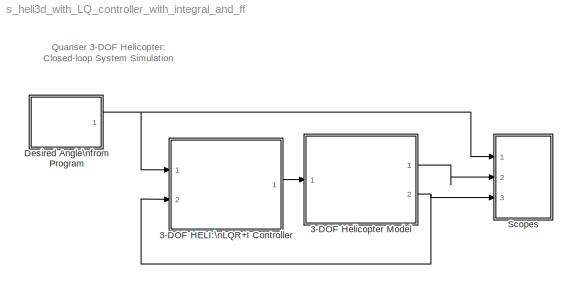
MODEL s_heli3d_with_LQ_controller_with_integral_and_ff
KIND model
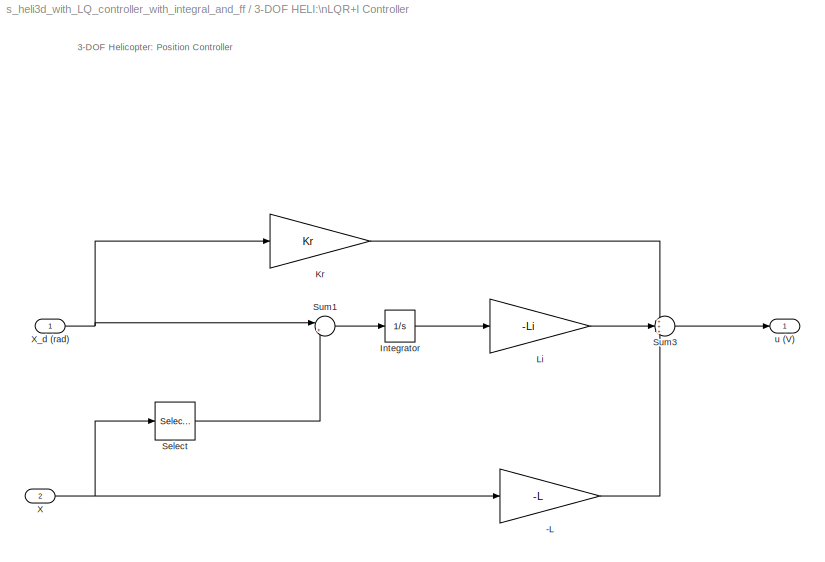
BLOCK [SubSystem] 3-DOF HELI:\nLQR+I Controller
  AncestorBlock = heli_2d_lib/2DOF HELI:\nFF+LQR+I Controller
  FunctionWithSeparateData = off
  MaskHideContents = off
  MinAlgLoopOccurrences = off
  Opaque = off
  Ports = [2, 1]
  PropExecContextOutsideSubsystem = off
  RTWSystemCode = Auto
  RequestExecContextInheritance = off
  SID = 1
BLOCK [Gain] 3-DOF HELI:\nLQR+I Controller/-L
  Gain = -L
  Multiplication = Matrix(K*u)
  OutDataTypeStr = Inherit: Inherit via internal rule
  ParamDataTypeStr = Inherit: Inherit via internal rule
  SID = 1:34
  SaturateOnIntegerOverflow = off
BLOCK [Integrator] 3-DOF HELI:\nLQR+I Controller/Integrator
  LimitOutput = on
  LowerSaturationLimit = -SAT_INT_ERR_TRAVEL
  Ports = [1, 1]
  SID = 1:41
  UpperSaturationLimit = SAT_INT_ERR_TRAVEL
BLOCK [Gain] 3-DOF HELI:\nLQR+I Controller/Kr
  Gain = Kr
  Multiplication = Matrix(K*u)
  OutDataTypeStr = Inherit: Inherit via internal rule
  ParamDataTypeStr = Inherit: Inherit via internal rule
  SID = 1:46
  SaturateOnIntegerOverflow = off
BLOCK [Gain] 3-DOF HELI:\nLQR+I Controller/Li
  Gain = -Li
  Multiplication = Matrix(K*u)
  OutDataTypeStr = Inherit: Inherit via internal rule
  ParamDataTypeStr = Inherit: Inherit via internal rule
  SID = 1:38
  SaturateOnIntegerOverflow = off
BLOCK [Selector] 3-DOF HELI:\nLQR+I Controller/Select
  IndexOptions = Index vector (dialog)
  Indices = [1:3]
  InputPortWidth = 6
  OutputSizes = 1
  Ports = [1, 1]
  SID = 1:45
BLOCK [Sum] 3-DOF HELI:\nLQR+I Controller/Sum1
  IconShape = round
  InputSameDT = off
  Inputs = |+-
  OutDataTypeStr = Inherit: Inherit via internal rule
  Ports = [2, 1]
  SID = 1:40
  SaturateOnIntegerOverflow = off
BLOCK [Sum] 3-DOF HELI:\nLQR+I Controller/Sum3
  IconShape = round
  InputSameDT = off
  Inputs = +++
  OutDataTypeStr = Inherit: Inherit via internal rule
  Ports = [3, 1]
  SID = 1:37
  SaturateOnIntegerOverflow = off
BLOCK [Inport] 3-DOF HELI:\nLQR+I Controller/X
  IconDisplay = Port number
  Port = 2
  SID = 1:2
BLOCK [Inport] 3-DOF HELI:\nLQR+I Controller/X_d (rad)
  IconDisplay = Port number
  SID = 1:1
BLOCK [Outport] 3-DOF HELI:\nLQR+I Controller/u (V)
  IconDisplay = Port number
  SID = 1:31
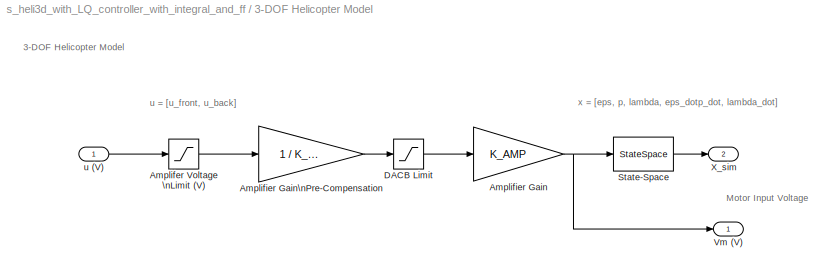
BLOCK [SubSystem] 3-DOF Helicopter Model
  FunctionWithSeparateData = off
  MaskHideContents = off
  MinAlgLoopOccurrences = off
  Opaque = off
  Ports = [1, 2]
  PropExecContextOutsideSubsystem = off
  RTWSystemCode = Auto
  RequestExecContextInheritance = off
  SID = 2
BLOCK [Saturate] 3-DOF Helicopter Model/Amplifer Voltage \nLimit (V)
  InputPortMap = u0
  LowerLimit = -VMAX_AMP
  Ports = [1, 1]
  SID = 4
  UpperLimit = VMAX_AMP
BLOCK [Gain] 3-DOF Helicopter Model/Amplifier Gain
  Gain = K_AMP
  Multiplication = Matrix(K*u)
  SID = 5
BLOCK [Gain] 3-DOF Helicopter Model/Amplifier Gain\nPre-Compensation
  Gain = 1 / K_AMP
  Multiplication = Matrix(K*u)
  SID = 6
BLOCK [Saturate] 3-DOF Helicopter Model/DACB Limit
  InputPortMap = u0
  LowerLimit = -VMAX_DAC
  Ports = [1, 1]
  SID = 7
  UpperLimit = VMAX_DAC
BLOCK [StateSpace] 3-DOF Helicopter Model/State-Space
  A = A
  B = B
  C = eye(6,6)
  D = zeros(6,2)
  SID = 8
BLOCK [Outport] 3-DOF Helicopter Model/Vm (V)
  IconDisplay = Port number
  SID = 9
BLOCK [Outport] 3-DOF Helicopter Model/X_sim
  IconDisplay = Port number
  Port = 2
  SID = 10
BLOCK [Inport] 3-DOF Helicopter Model/u (V)
  IconDisplay = Port number
  SID = 3
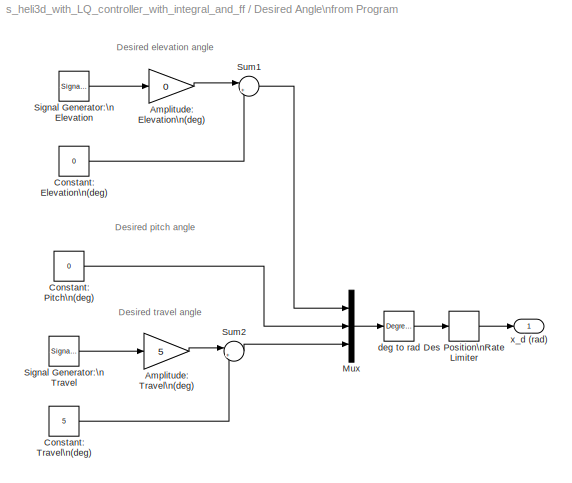
BLOCK [SubSystem] Desired Angle\nfrom Program
  FunctionWithSeparateData = off
  MaskHideContents = off
  MinAlgLoopOccurrences = off
  Opaque = off
  Ports = [0, 1]
  PropExecContextOutsideSubsystem = off
  RTWSystemCode = Auto
  RequestExecContextInheritance = off
  SID = 11
BLOCK [Gain] Desired Angle\nfrom Program/Amplitude: Elevation\n(deg)
  Gain = 0
  OutDataTypeStr = Inherit: Inherit via internal rule
  ParamDataTypeStr = Inherit: Inherit via internal rule
  SID = 12
  SaturateOnIntegerOverflow = off
BLOCK [Gain] Desired Angle\nfrom Program/Amplitude: Travel\n(deg)
  Gain = 5
  OutDataTypeStr = Inherit: Inherit via internal rule
  ParamDataTypeStr = Inherit: Inherit via internal rule
  SID = 13
  SaturateOnIntegerOverflow = off
BLOCK [Constant] Desired Angle\nfrom Program/Constant: Elevation\n(deg)
  SID = 14
  Value = 0
BLOCK [Constant] Desired Angle\nfrom Program/Constant: Pitch\n(deg)
  SID = 15
  Value = 0
BLOCK [Constant] Desired Angle\nfrom Program/Constant: Travel\n(deg)
  SID = 16
  Value = 5
BLOCK [RateLimiter] Desired Angle\nfrom Program/Des Position\nRate Limiter
  FallingSlewLimit = -CMD_RATE_LIMIT
  RisingSlewLimit = CMD_RATE_LIMIT
  SID = 17
  SampleTimeMode = inherited
BLOCK [Mux] Desired Angle\nfrom Program/Mux
  DisplayOption = bar
  Inputs = 3
  Ports = [3, 1]
  SID = 18
BLOCK [SignalGenerator] Desired Angle\nfrom Program/Signal Generator:\nElevation
  Frequency = 0.02
  Ports = [0, 1]
  SID = 19
  WaveForm = square
BLOCK [SignalGenerator] Desired Angle\nfrom Program/Signal Generator:\nTravel
  Frequency = 0.02
  Ports = [0, 1]
  SID = 20
  WaveForm = square
BLOCK [Sum] Desired Angle\nfrom Program/Sum1
  IconShape = round
  InputSameDT = off
  Inputs = |++
  OutDataTypeStr = Inherit: Inherit via internal rule
  Ports = [2, 1]
  SID = 21
  SaturateOnIntegerOverflow = off
BLOCK [Sum] Desired Angle\nfrom Program/Sum2
  IconShape = round
  InputSameDT = off
  Inputs = |++
  OutDataTypeStr = Inherit: Inherit via internal rule
  Ports = [2, 1]
  SID = 22
  SaturateOnIntegerOverflow = off
BLOCK [Reference] Desired Angle\nfrom Program/deg to rad  REF=simulink_extras/Transformations/Degrees to\nRadians
  FunctionWithSeparateData = off
  GeneratePreprocessorConditionals = off
  Ports = [1, 1]
  RTWMemSecDataConstants = Inherit from model
  RTWMemSecDataInternal = Inherit from model
  RTWMemSecDataParameters = Inherit from model
  RTWMemSecFuncExecute = Inherit from model
  RTWMemSecFuncInitTerm = Inherit from model
  SID = 23
  ShowPortLabels = FromPortIcon
  SourceBlock = simulink_extras/Transformations/Degrees to\nRadians
  SourceType = DegreesToRadians
  SystemSampleTime = -1
BLOCK [Outport] Desired Angle\nfrom Program/x_d (rad)
  IconDisplay = Port number
  SID = 24
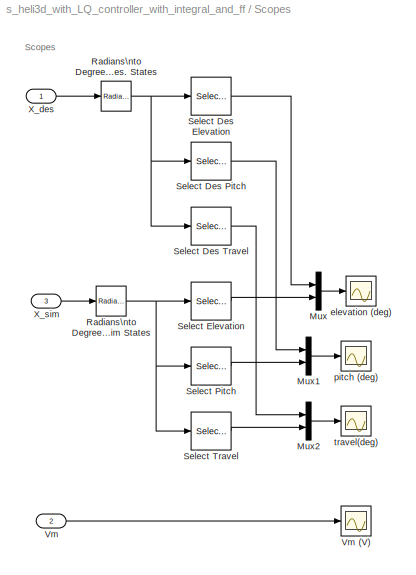
BLOCK [SubSystem] Scopes
  FunctionWithSeparateData = off
  MaskHideContents = off
  MinAlgLoopOccurrences = off
  Opaque = off
  Ports = [3]
  PropExecContextOutsideSubsystem = off
  RTWSystemCode = Auto
  RequestExecContextInheritance = off
  SID = 25
BLOCK [Mux] Scopes/Mux
  DisplayOption = bar
  Inputs = 2
  Ports = [2, 1]
  SID = 29
BLOCK [Mux] Scopes/Mux1
  DisplayOption = bar
  Inputs = 2
  Ports = [2, 1]
  SID = 30
BLOCK [Mux] Scopes/Mux2
  DisplayOption = bar
  Inputs = 2
  Ports = [2, 1]
  SID = 31
BLOCK [Reference] Scopes/Radians\nto Degrees -\nDes. States  REF=simulink_extras/Transformations/Radians\nto Degrees
  FunctionWithSeparateData = off
  GeneratePreprocessorConditionals = off
  Ports = [1, 1]
  RTWMemSecDataConstants = Inherit from model
  RTWMemSecDataInternal = Inherit from model
  RTWMemSecDataParameters = Inherit from model
  RTWMemSecFuncExecute = Inherit from model
  RTWMemSecFuncInitTerm = Inherit from model
  SID = 32
  ShowPortLabels = FromPortIcon
  SourceBlock = simulink_extras/Transformations/Radians\nto Degrees
  SourceType = RadiansToDegrees
  SystemSampleTime = -1
BLOCK [Reference] Scopes/Radians\nto Degrees -\nSim States  REF=simulink_extras/Transformations/Radians\nto Degrees
  FunctionWithSeparateData = off
  GeneratePreprocessorConditionals = off
  Ports = [1, 1]
  RTWMemSecDataConstants = Inherit from model
  RTWMemSecDataInternal = Inherit from model
  RTWMemSecDataParameters = Inherit from model
  RTWMemSecFuncExecute = Inherit from model
  RTWMemSecFuncInitTerm = Inherit from model
  SID = 33
  ShowPortLabels = FromPortIcon
  SourceBlock = simulink_extras/Transformations/Radians\nto Degrees
  SourceType = RadiansToDegrees
  SystemSampleTime = -1
BLOCK [Selector] Scopes/Select Des Elevation
  IndexOptions = Index vector (dialog)
  Indices = 1
  InputPortWidth = 3
  OutputSizes = 1
  Ports = [1, 1]
  SID = 34
BLOCK [Selector] Scopes/Select Des Pitch
  IndexOptions = Index vector (dialog)
  Indices = 2
  InputPortWidth = 3
  OutputSizes = 1
  Ports = [1, 1]
  SID = 35
BLOCK [Selector] Scopes/Select Des Travel
  IndexOptions = Index vector (dialog)
  Indices = 3
  InputPortWidth = 3
  OutputSizes = 1
  Ports = [1, 1]
  SID = 36
BLOCK [Selector] Scopes/Select Elevation
  IndexOptions = Index vector (dialog)
  Indices = 1
  InputPortWidth = 6
  OutputSizes = 1
  Ports = [1, 1]
  SID = 37
BLOCK [Selector] Scopes/Select Pitch
  IndexOptions = Index vector (dialog)
  Indices = 2
  InputPortWidth = 6
  OutputSizes = 1
  Ports = [1, 1]
  SID = 38
BLOCK [Selector] Scopes/Select Travel
  IndexOptions = Index vector (dialog)
  Indices = 3
  InputPortWidth = 6
  OutputSizes = 1
  Ports = [1, 1]
  SID = 39
BLOCK [Inport] Scopes/Vm
  IconDisplay = Port number
  Port = 2
  SID = 27
BLOCK [Scope] Scopes/Vm (V)
  DataFormat = Array
  Floating = off
  LimitDataPoints = off
  NumInputPorts = 1
  Ports = [1]
  SID = 40
  SampleTime = 0
  SaveName = ScopeData4
  TickLabels = on
  TimeRange = 60
  YMax = 25
  YMin = -25
BLOCK [Inport] Scopes/X_des
  IconDisplay = Port number
  SID = 26
BLOCK [Inport] Scopes/X_sim
  IconDisplay = Port number
  Port = 3
  SID = 28
BLOCK [Scope] Scopes/elevation (deg)
  DataFormat = Array
  Floating = off
  LimitDataPoints = off
  NumInputPorts = 1
  Ports = [1]
  SID = 41
  SampleTime = 0
  TickLabels = on
  TimeRange = 70
  YMax = 15
  YMin = -15
BLOCK [Scope] Scopes/pitch (deg)
  DataFormat = Array
  Floating = off
  LimitDataPoints = off
  NumInputPorts = 1
  Ports = [1]
  SID = 42
  SampleTime = 0
  SaveName = ScopeData1
  TickLabels = on
  TimeRange = 60
  YMax = 30
  YMin = -30
BLOCK [Scope] Scopes/travel(deg)
  DataFormat = Array
  Floating = off
  LimitDataPoints = off
  NumInputPorts = 1
  Ports = [1]
  SID = 43
  SampleTime = 0
  SaveName = ScopeData2
  TickLabels = on
  TimeRange = 60
  YMax = 100
  YMin = -100
ANNOTATION (root): Quanser 3-DOF Helicopter: \nClosed-loop System Simulation
ANNOTATION 3-DOF HELI:\nLQR+I Controller: 3-DOF Helicopter: Position Controller
ANNOTATION 3-DOF Helicopter Model: 3-DOF Helicopter Model
ANNOTATION 3-DOF Helicopter Model: Motor Input Voltage
ANNOTATION 3-DOF Helicopter Model: u = [u_front, u_back]
ANNOTATION 3-DOF Helicopter Model: x = [eps, p, lambda, eps_dotp_dot, lambda_dot]
ANNOTATION Desired Angle\nfrom Program: Desired elevation angle
ANNOTATION Desired Angle\nfrom Program: Desired pitch angle
ANNOTATION Desired Angle\nfrom Program: Desired travel angle
ANNOTATION Scopes: Scopes
LINE 3-DOF HELI:\nLQR+I Controller/-L:1 -> 3-DOF HELI:\nLQR+I Controller/Sum3:3
LINE 3-DOF HELI:\nLQR+I Controller/Integrator:1 -> 3-DOF HELI:\nLQR+I Controller/Li:1
LINE 3-DOF HELI:\nLQR+I Controller/Kr:1 -> 3-DOF HELI:\nLQR+I Controller/Sum3:1
LINE 3-DOF HELI:\nLQR+I Controller/Li:1 -> 3-DOF HELI:\nLQR+I Controller/Sum3:2
LINE 3-DOF HELI:\nLQR+I Controller/Select:1 -> 3-DOF HELI:\nLQR+I Controller/Sum1:2
LINE 3-DOF HELI:\nLQR+I Controller/Sum1:1 -> 3-DOF HELI:\nLQR+I Controller/Integrator:1
LINE 3-DOF HELI:\nLQR+I Controller/Sum3:1 -> 3-DOF HELI:\nLQR+I Controller/u (V):1
NET 3-DOF HELI:\nLQR+I Controller/X:1 -> 3-DOF HELI:\nLQR+I Controller/-L:1, 3-DOF HELI:\nLQR+I Controller/Select:1
NET 3-DOF HELI:\nLQR+I Controller/X_d (rad):1 -> 3-DOF HELI:\nLQR+I Controller/Kr:1, 3-DOF HELI:\nLQR+I Controller/Sum1:1
LINE 3-DOF HELI:\nLQR+I Controller:1 -> 3-DOF Helicopter Model:1
LINE 3-DOF Helicopter Model/Amplifer Voltage \nLimit (V):1 -> 3-DOF Helicopter Model/Amplifier Gain\nPre-Compensation:1
NET 3-DOF Helicopter Model/Amplifier Gain:1 -> 3-DOF Helicopter Model/State-Space:1, 3-DOF Helicopter Model/Vm (V):1
LINE 3-DOF Helicopter Model/Amplifier Gain\nPre-Compensation:1 -> 3-DOF Helicopter Model/DACB Limit:1
LINE 3-DOF Helicopter Model/DACB Limit:1 -> 3-DOF Helicopter Model/Amplifier Gain:1
LINE 3-DOF Helicopter Model/State-Space:1 -> 3-DOF Helicopter Model/X_sim:1
LINE 3-DOF Helicopter Model/u (V):1 -> 3-DOF Helicopter Model/Amplifer Voltage \nLimit (V):1
LINE 3-DOF Helicopter Model:1 -> Scopes:2
NET 3-DOF Helicopter Model:2 -> 3-DOF HELI:\nLQR+I Controller:2, Scopes:3
LINE Desired Angle\nfrom Program/Amplitude: Elevation\n(deg):1 -> Desired Angle\nfrom Program/Sum1:1
LINE Desired Angle\nfrom Program/Amplitude: Travel\n(deg):1 -> Desired Angle\nfrom Program/Sum2:1
LINE Desired Angle\nfrom Program/Constant: Elevation\n(deg):1 -> Desired Angle\nfrom Program/Sum1:2
LINE Desired Angle\nfrom Program/Constant: Pitch\n(deg):1 -> Desired Angle\nfrom Program/Mux:2
LINE Desired Angle\nfrom Program/Constant: Travel\n(deg):1 -> Desired Angle\nfrom Program/Sum2:2
LINE Desired Angle\nfrom Program/Des Position\nRate Limiter:1 -> Desired Angle\nfrom Program/x_d (rad):1
LINE Desired Angle\nfrom Program/Mux:1 -> Desired Angle\nfrom Program/deg to rad:1
LINE Desired Angle\nfrom Program/Signal Generator:\nElevation:1 -> Desired Angle\nfrom Program/Amplitude: Elevation\n(deg):1
LINE Desired Angle\nfrom Program/Signal Generator:\nTravel:1 -> Desired Angle\nfrom Program/Amplitude: Travel\n(deg):1
LINE Desired Angle\nfrom Program/Sum1:1 -> Desired Angle\nfrom Program/Mux:1
LINE Desired Angle\nfrom Program/Sum2:1 -> Desired Angle\nfrom Program/Mux:3
LINE Desired Angle\nfrom Program/deg to rad:1 -> Desired Angle\nfrom Program/Des Position\nRate Limiter:1
NET Desired Angle\nfrom Program:1 -> 3-DOF HELI:\nLQR+I Controller:1, Scopes:1
LINE Scopes/Mux1:1 -> Scopes/pitch (deg):1
LINE Scopes/Mux2:1 -> Scopes/travel(deg):1
LINE Scopes/Mux:1 -> Scopes/elevation (deg):1
NET Scopes/Radians\nto Degrees -\nDes. States:1 -> Scopes/Select Des Elevation:1, Scopes/Select Des Pitch:1, Scopes/Select Des Travel:1
NET Scopes/Radians\nto Degrees -\nSim States:1 -> Scopes/Select Elevation:1, Scopes/Select Pitch:1, Scopes/Select Travel:1
LINE Scopes/Select Des Elevation:1 -> Scopes/Mux:1
LINE Scopes/Select Des Pitch:1 -> Scopes/Mux1:1
LINE Scopes/Select Des Travel:1 -> Scopes/Mux2:1
LINE Scopes/Select Elevation:1 -> Scopes/Mux:2
LINE Scopes/Select Pitch:1 -> Scopes/Mux1:2
LINE Scopes/Select Travel:1 -> Scopes/Mux2:2
LINE Scopes/Vm:1 -> Scopes/Vm (V):1
LINE Scopes/X_des:1 -> Scopes/Radians\nto Degrees -\nDes. States:1
LINE Scopes/X_sim:1 -> Scopes/Radians\nto Degrees -\nSim States:1
note: NET lines group one-source signal fan-out (src -> all destinations, sorted); 1:1 wires keep LINE
